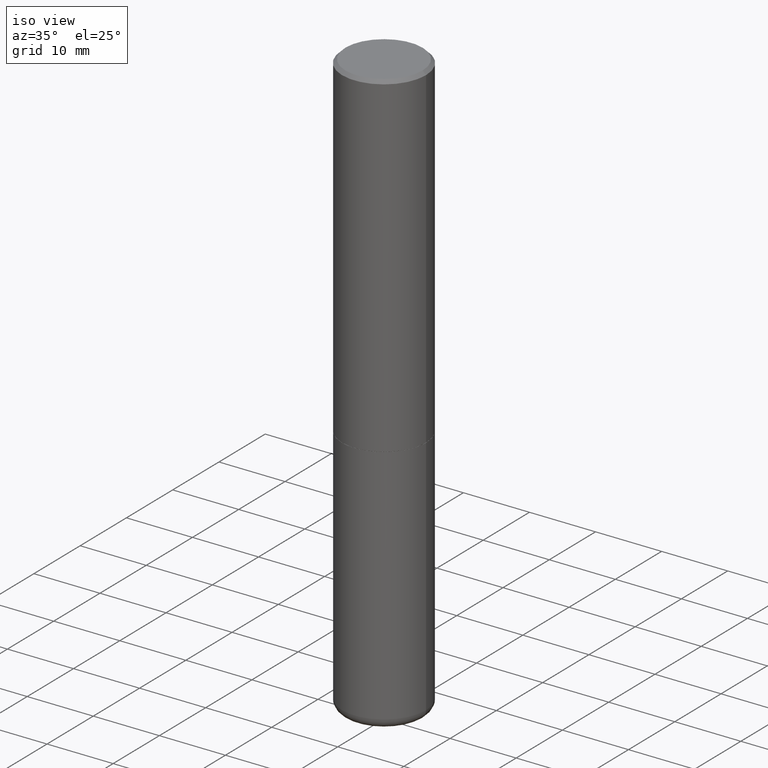
[diagram: clean part render]
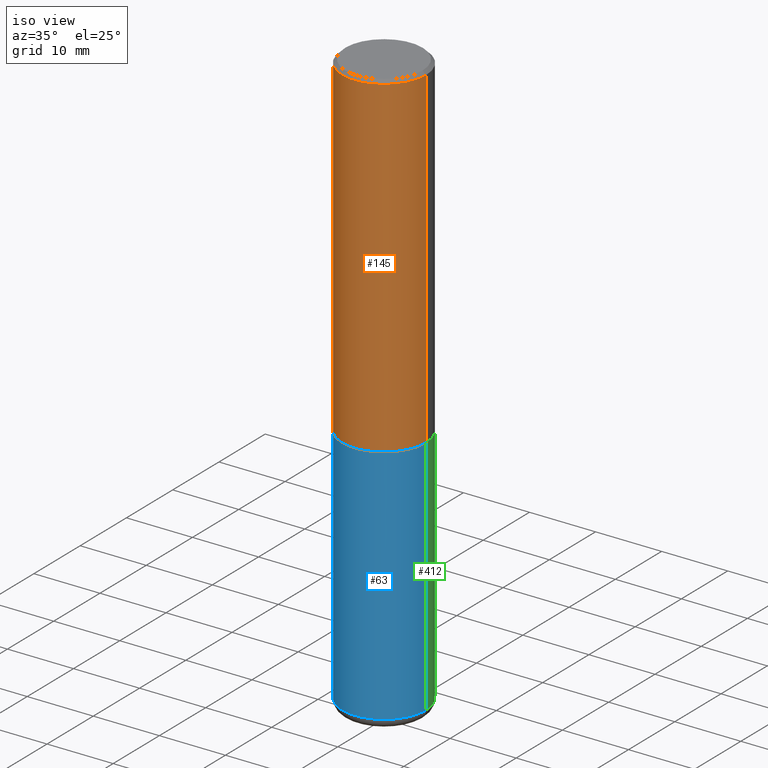
[diagram: same view with three faces highlighted in distinct colors, each labeled with its STEP entity id]
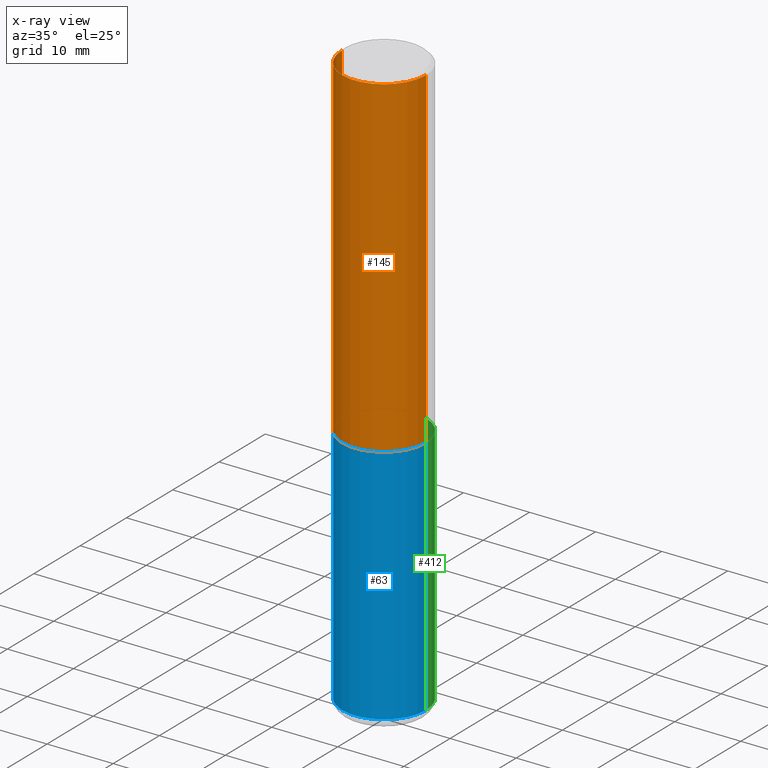
[diagram: x-ray of the same camera — body ghosted, the three highlighted faces saturated]
A machine part, iso view with three faces highlighted in distinct colors.
The next image is the same camera in x-ray (body ghosted, the three faces saturated) — at least one of them is partly hidden behind the body in this view.
Their STEP definitions:

[orange] entity #145 — the highlighted cylindrical surface (partial cylindrical patch) has radius 6.35 mm, axis along (-0, 0, 1).
#38 = VERTEX_POINT ( 'NONE', #77 ) ;
#43 = ORIENTED_EDGE ( 'NONE', *, *, #389, .T. ) ;
#49 = CIRCLE ( 'NONE', #281, 0.2499999999999999167 ) ;
#51 = LINE ( 'NONE', #246, #212 ) ;
#56 = VERTEX_POINT ( 'NONE', #208 ) ;
#66 = VERTEX_POINT ( 'NONE', #162 ) ;
#68 = AXIS2_PLACEMENT_3D ( 'NONE', #400, #114, #279 ) ;
#73 = ORIENTED_EDGE ( 'NONE', *, *, #403, .T. ) ;
#74 = DIRECTION ( 'NONE',  ( -2.445468806185136877E-29, 3.491481338843145188E-15, 1.000000000000000000 ) ) ;
#77 = CARTESIAN_POINT ( 'NONE',  ( -0.2500000000000002776, -1.748293572161900530E-15, -1.998999999999999888 ) ) ;
#79 = EDGE_LOOP ( 'NONE', ( #415, #43, #73, #288 ) ) ;
#109 = CIRCLE ( 'NONE', #404, 0.2500000000000002776 ) ;
#114 = DIRECTION ( 'NONE',  ( -2.445468806185136597E-29, 3.491481338843145583E-15, 1.000000000000000000 ) ) ;
#126 = CARTESIAN_POINT ( 'NONE',  ( 0.2500000000000001110, -1.745740669421567467E-15, 1.219044193948984509E-29 ) ) ;
#142 = FACE_OUTER_BOUND ( 'NONE', #79, .T. ) ;
#145 = ADVANCED_FACE ( 'NONE', ( #142 ), #405, .T. ) ;
#162 = CARTESIAN_POINT ( 'NONE',  ( 0.2500000000000002776, -8.725211865769015625E-15, -1.998999999999999888 ) ) ;
#200 = CARTESIAN_POINT ( 'NONE',  ( 4.888492143564087591E-29, -6.979471196347447369E-15, -1.998999999999999888 ) ) ;
#204 = VERTEX_POINT ( 'NONE', #310 ) ;
#208 = CARTESIAN_POINT ( 'NONE',  ( 0.2499999999999999167, -1.784954126219745400E-15, -0.02000000000000005593 ) ) ;
#211 = CARTESIAN_POINT ( 'NONE',  ( 4.890937612370287172E-31, -6.982962677686310098E-17, -0.02000000000000005593 ) ) ;
#212 = VECTOR ( 'NONE', #282, 39.37007874015748143 ) ;
#221 = EDGE_CURVE ( 'NONE', #204, #56, #49, .T. ) ;
#246 = CARTESIAN_POINT ( 'NONE',  ( -0.2500000000000001110, 1.776356839400251254E-15, -1.229733772563727006E-29 ) ) ;
#260 = VECTOR ( 'NONE', #74, 39.37007874015748143 ) ;
#279 = DIRECTION ( 'NONE',  ( 1.000000000000000000, -6.982962677686266711E-15, 4.876176775795935793E-29 ) ) ;
#281 = AXIS2_PLACEMENT_3D ( 'NONE', #211, #372, #401 ) ;
#282 = DIRECTION ( 'NONE',  ( -2.445468806185136877E-29, 3.491481338843145188E-15, 1.000000000000000000 ) ) ;
#288 = ORIENTED_EDGE ( 'NONE', *, *, #221, .F. ) ;
#310 = CARTESIAN_POINT ( 'NONE',  ( -0.2499999999999999167, 1.675911042644703182E-15, -0.02000000000000005593 ) ) ;
#323 = DIRECTION ( 'NONE',  ( -2.445468806185136597E-29, 3.491481338843145583E-15, 1.000000000000000000 ) ) ;
#330 = DIRECTION ( 'NONE',  ( 1.000000000000000000, -6.982962677686266711E-15, 0.000000000000000000 ) ) ;
#334 = LINE ( 'NONE', #126, #260 ) ;
#347 = EDGE_CURVE ( 'NONE', #38, #204, #51, .T. ) ;
#372 = DIRECTION ( 'NONE',  ( -2.445468806185136597E-29, 3.491481338843145583E-15, 1.000000000000000000 ) ) ;
#389 = EDGE_CURVE ( 'NONE', #38, #66, #109, .T. ) ;
#400 = CARTESIAN_POINT ( 'NONE',  ( 0.000000000000000000, 0.000000000000000000, 0.000000000000000000 ) ) ;
#401 = DIRECTION ( 'NONE',  ( 1.000000000000000000, -6.982962677686267499E-15, 0.000000000000000000 ) ) ;
#403 = EDGE_CURVE ( 'NONE', #66, #56, #334, .T. ) ;
#404 = AXIS2_PLACEMENT_3D ( 'NONE', #200, #323, #330 ) ;
#405 = CYLINDRICAL_SURFACE ( 'NONE', #68, 0.2500000000000001110 ) ;
#415 = ORIENTED_EDGE ( 'NONE', *, *, #347, .F. ) ;

[blue] entity #63 — the highlighted cylindrical surface (partial cylindrical patch) has radius 6.35 mm, axis along (-0, 0, 1).
#4 = DIRECTION ( 'NONE',  ( 1.000000000000000000, -6.982962677686266711E-15, 4.876176775795935793E-29 ) ) ;
#5 = ORIENTED_EDGE ( 'NONE', *, *, #243, .T. ) ;
#7 = LINE ( 'NONE', #395, #387 ) ;
#22 = EDGE_CURVE ( 'NONE', #299, #261, #34, .T. ) ;
#30 = AXIS2_PLACEMENT_3D ( 'NONE', #50, #308, #141 ) ;
#34 = LINE ( 'NONE', #42, #176 ) ;
#42 = CARTESIAN_POINT ( 'NONE',  ( -0.2500000000000000000, 1.776356839400250465E-15, -1.229733772563726445E-29 ) ) ;
#45 = CARTESIAN_POINT ( 'NONE',  ( 0.000000000000000000, 0.000000000000000000, 0.000000000000000000 ) ) ;
#47 = DIRECTION ( 'NONE',  ( -2.445468806185136597E-29, 3.491481338843145583E-15, 1.000000000000000000 ) ) ;
#50 = CARTESIAN_POINT ( 'NONE',  ( 4.890937612370273194E-29, -6.982962677686291165E-15, -2.000000000000000000 ) ) ;
#54 = CARTESIAN_POINT ( 'NONE',  ( 8.412412693276869938E-29, -1.201069580562042103E-14, -3.439999999999999947 ) ) ;
#63 = ADVANCED_FACE ( 'NONE', ( #340 ), #398, .T. ) ;
#85 = CARTESIAN_POINT ( 'NONE',  ( -0.2500000000000000000, -7.720472402253106025E-15, -2.000000000000000000 ) ) ;
#115 = CIRCLE ( 'NONE', #30, 0.2500000000000000000 ) ;
#123 = VERTEX_POINT ( 'NONE', #187 ) ;
#125 = ORIENTED_EDGE ( 'NONE', *, *, #291, .F. ) ;
#129 = AXIS2_PLACEMENT_3D ( 'NONE', #45, #47, #4 ) ;
#141 = DIRECTION ( 'NONE',  ( 1.000000000000000000, -6.982962677686266711E-15, 0.000000000000000000 ) ) ;
#155 = AXIS2_PLACEMENT_3D ( 'NONE', #54, #241, #277 ) ;
#176 = VECTOR ( 'NONE', #202, 39.37007874015748143 ) ;
#179 = CARTESIAN_POINT ( 'NONE',  ( 0.2499999999999999722, -1.375643647504198770E-14, -3.439999999999999947 ) ) ;
#187 = CARTESIAN_POINT ( 'NONE',  ( 0.2500000000000000000, -8.728703347107857054E-15, -2.000000000000000000 ) ) ;
#202 = DIRECTION ( 'NONE',  ( -2.445468806185136877E-29, 3.491481338843145188E-15, 1.000000000000000000 ) ) ;
#223 = EDGE_LOOP ( 'NONE', ( #294, #5, #393, #125 ) ) ;
#241 = DIRECTION ( 'NONE',  ( -2.445468806185136597E-29, 3.491481338843145583E-15, 1.000000000000000000 ) ) ;
#243 = EDGE_CURVE ( 'NONE', #299, #414, #245, .T. ) ;
#245 = CIRCLE ( 'NONE', #155, 0.2500000000000000000 ) ;
#261 = VERTEX_POINT ( 'NONE', #85 ) ;
#277 = DIRECTION ( 'NONE',  ( 1.000000000000000000, -6.982962677686270655E-15, 0.000000000000000000 ) ) ;
#291 = EDGE_CURVE ( 'NONE', #261, #123, #115, .T. ) ;
#294 = ORIENTED_EDGE ( 'NONE', *, *, #22, .F. ) ;
#299 = VERTEX_POINT ( 'NONE', #345 ) ;
#308 = DIRECTION ( 'NONE',  ( -2.445468806185136597E-29, 3.491481338843145583E-15, 1.000000000000000000 ) ) ;
#340 = FACE_OUTER_BOUND ( 'NONE', #223, .T. ) ;
#341 = EDGE_CURVE ( 'NONE', #414, #123, #7, .T. ) ;
#345 = CARTESIAN_POINT ( 'NONE',  ( -0.2499999999999999722, -1.023433896622016898E-14, -3.439999999999999947 ) ) ;
#365 = DIRECTION ( 'NONE',  ( -2.445468806185136877E-29, 3.491481338843145188E-15, 1.000000000000000000 ) ) ;
#387 = VECTOR ( 'NONE', #365, 39.37007874015748143 ) ;
#393 = ORIENTED_EDGE ( 'NONE', *, *, #341, .T. ) ;
#395 = CARTESIAN_POINT ( 'NONE',  ( 0.2500000000000000000, -1.745740669421566678E-15, 1.219044193948983948E-29 ) ) ;
#398 = CYLINDRICAL_SURFACE ( 'NONE', #129, 0.2500000000000000000 ) ;
#414 = VERTEX_POINT ( 'NONE', #179 ) ;

[green] entity #412 — the highlighted cylindrical surface (partial cylindrical patch) has radius 6.35 mm, axis along (-0, 0, 1).
#7 = LINE ( 'NONE', #395, #387 ) ;
#22 = EDGE_CURVE ( 'NONE', #299, #261, #34, .T. ) ;
#34 = LINE ( 'NONE', #42, #176 ) ;
#39 = CIRCLE ( 'NONE', #275, 0.2500000000000000000 ) ;
#42 = CARTESIAN_POINT ( 'NONE',  ( -0.2500000000000000000, 1.776356839400250465E-15, -1.229733772563726445E-29 ) ) ;
#44 = DIRECTION ( 'NONE',  ( -2.445468806185136597E-29, 3.491481338843145583E-15, 1.000000000000000000 ) ) ;
#55 = AXIS2_PLACEMENT_3D ( 'NONE', #394, #44, #399 ) ;
#85 = CARTESIAN_POINT ( 'NONE',  ( -0.2500000000000000000, -7.720472402253106025E-15, -2.000000000000000000 ) ) ;
#94 = EDGE_CURVE ( 'NONE', #123, #261, #258, .T. ) ;
#123 = VERTEX_POINT ( 'NONE', #187 ) ;
#134 = CYLINDRICAL_SURFACE ( 'NONE', #55, 0.2500000000000000000 ) ;
#147 = DIRECTION ( 'NONE',  ( 1.000000000000000000, -6.982962677686270655E-15, 0.000000000000000000 ) ) ;
#149 = AXIS2_PLACEMENT_3D ( 'NONE', #390, #229, #297 ) ;
#151 = EDGE_CURVE ( 'NONE', #414, #299, #39, .T. ) ;
#175 = ORIENTED_EDGE ( 'NONE', *, *, #94, .F. ) ;
#176 = VECTOR ( 'NONE', #202, 39.37007874015748143 ) ;
#179 = CARTESIAN_POINT ( 'NONE',  ( 0.2499999999999999722, -1.375643647504198770E-14, -3.439999999999999947 ) ) ;
#187 = CARTESIAN_POINT ( 'NONE',  ( 0.2500000000000000000, -8.728703347107857054E-15, -2.000000000000000000 ) ) ;
#202 = DIRECTION ( 'NONE',  ( -2.445468806185136877E-29, 3.491481338843145188E-15, 1.000000000000000000 ) ) ;
#227 = EDGE_LOOP ( 'NONE', ( #318, #322, #175, #309 ) ) ;
#229 = DIRECTION ( 'NONE',  ( -2.445468806185136597E-29, 3.491481338843145583E-15, 1.000000000000000000 ) ) ;
#249 = DIRECTION ( 'NONE',  ( -2.445468806185136597E-29, 3.491481338843145583E-15, 1.000000000000000000 ) ) ;
#258 = CIRCLE ( 'NONE', #149, 0.2500000000000000000 ) ;
#261 = VERTEX_POINT ( 'NONE', #85 ) ;
#275 = AXIS2_PLACEMENT_3D ( 'NONE', #317, #249, #147 ) ;
#297 = DIRECTION ( 'NONE',  ( 1.000000000000000000, -6.982962677686266711E-15, 0.000000000000000000 ) ) ;
#299 = VERTEX_POINT ( 'NONE', #345 ) ;
#309 = ORIENTED_EDGE ( 'NONE', *, *, #341, .F. ) ;
#317 = CARTESIAN_POINT ( 'NONE',  ( 8.412412693276869938E-29, -1.201069580562042103E-14, -3.439999999999999947 ) ) ;
#318 = ORIENTED_EDGE ( 'NONE', *, *, #151, .T. ) ;
#322 = ORIENTED_EDGE ( 'NONE', *, *, #22, .T. ) ;
#341 = EDGE_CURVE ( 'NONE', #414, #123, #7, .T. ) ;
#345 = CARTESIAN_POINT ( 'NONE',  ( -0.2499999999999999722, -1.023433896622016898E-14, -3.439999999999999947 ) ) ;
#363 = FACE_OUTER_BOUND ( 'NONE', #227, .T. ) ;
#365 = DIRECTION ( 'NONE',  ( -2.445468806185136877E-29, 3.491481338843145188E-15, 1.000000000000000000 ) ) ;
#387 = VECTOR ( 'NONE', #365, 39.37007874015748143 ) ;
#390 = CARTESIAN_POINT ( 'NONE',  ( 4.890937612370273194E-29, -6.982962677686291165E-15, -2.000000000000000000 ) ) ;
#394 = CARTESIAN_POINT ( 'NONE',  ( 0.000000000000000000, 0.000000000000000000, 0.000000000000000000 ) ) ;
#395 = CARTESIAN_POINT ( 'NONE',  ( 0.2500000000000000000, -1.745740669421566678E-15, 1.219044193948983948E-29 ) ) ;
#399 = DIRECTION ( 'NONE',  ( 1.000000000000000000, -6.982962677686266711E-15, 4.876176775795935793E-29 ) ) ;
#412 = ADVANCED_FACE ( 'NONE', ( #363 ), #134, .T. ) ;
#414 = VERTEX_POINT ( 'NONE', #179 ) ;